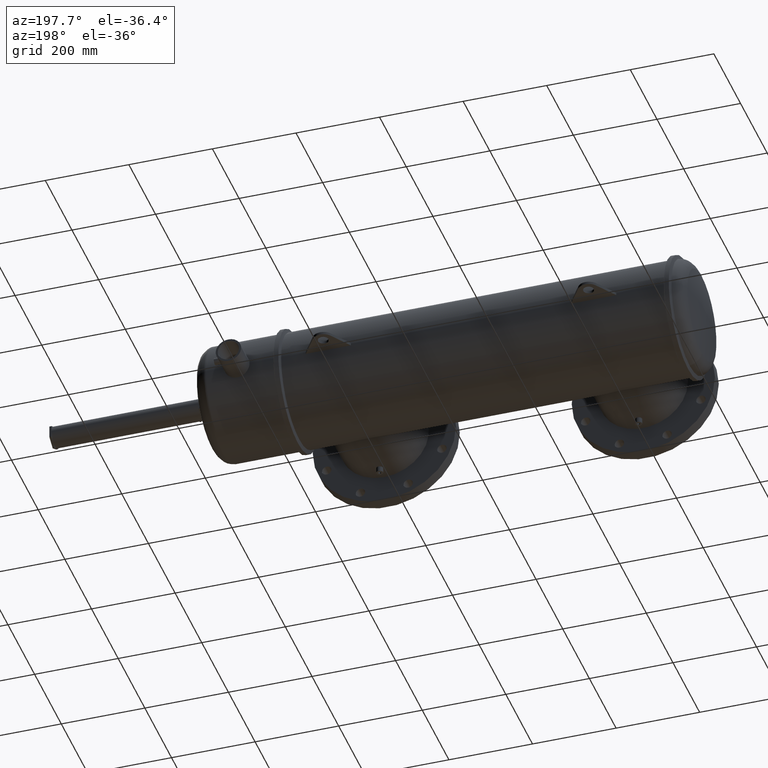
[diagram: clean part render]
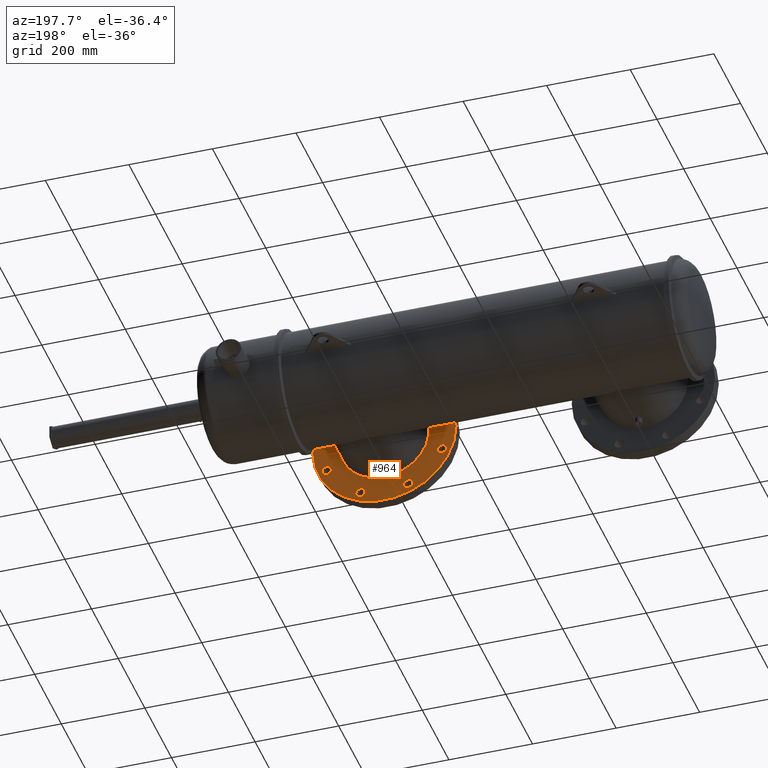
[diagram: same view with one face highlighted and labeled with its STEP entity id]
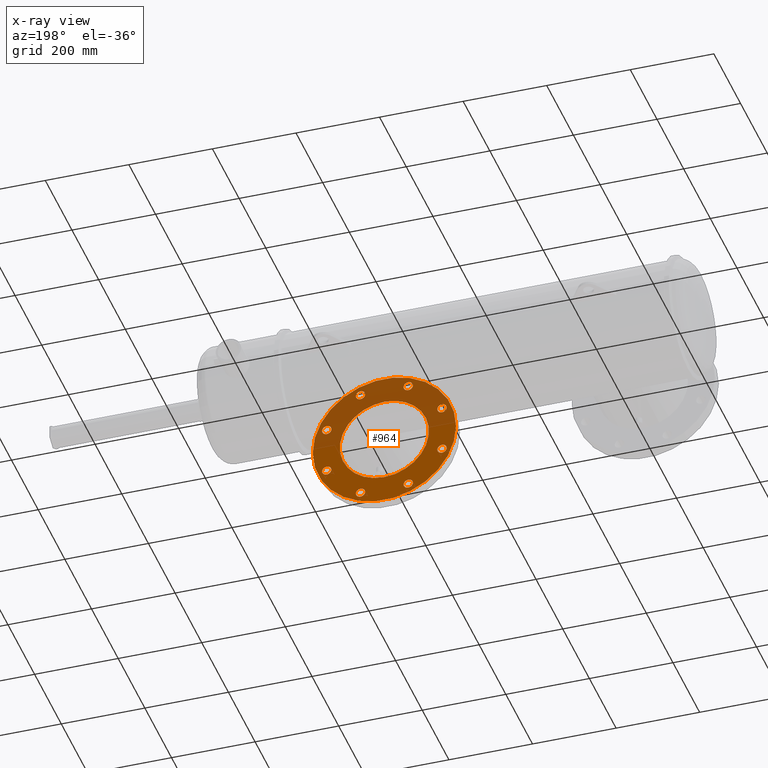
[diagram: x-ray of the same camera — body ghosted, the highlighted face saturated]
A machine part, auxiliary view. The second image highlights one B-rep face of the part: STEP entity #964.
The next image is the same camera in x-ray: the body ghosted, the highlighted face saturated — about 48% of this face is hidden behind the body in this view.
In plain terms, the highlighted planar face has unit normal (0, -1, 0).
Its self-contained STEP definition (entity closure, byte-faithful):
#21 = VERTEX_POINT ( 'NONE', #2754 ) ;
#47 = CARTESIAN_POINT ( 'NONE',  ( 38.75933425157163000, -9.259999999999998000, 2.248265165145017200 ) ) ;
#78 = EDGE_CURVE ( 'NONE', #6209, #1528, #3925, .T. ) ;
#108 = EDGE_LOOP ( 'NONE', ( #6793, #5012 ) ) ;
#123 = DIRECTION ( 'NONE',  ( 1.052735257674089800E-016, -1.000000000000000000, 0.0000000000000000000 ) ) ;
#218 = CARTESIAN_POINT ( 'NONE',  ( 40.08154199806774200, -9.259999999999996200, 0.0000000000000000000 ) ) ;
#259 = AXIS2_PLACEMENT_3D ( 'NONE', #4821, #5918, #3710 ) ;
#285 = AXIS2_PLACEMENT_3D ( 'NONE', #6005, #1566, #6552 ) ;
#288 = AXIS2_PLACEMENT_3D ( 'NONE', #4415, #4833, #541 ) ;
#452 = EDGE_LOOP ( 'NONE', ( #1020, #6146 ) ) ;
#535 = FACE_BOUND ( 'NONE', #3739, .T. ) ;
#541 = DIRECTION ( 'NONE',  ( 1.000000000000000000, 0.0000000000000000000, 0.0000000000000000000 ) ) ;
#579 = CARTESIAN_POINT ( 'NONE',  ( 27.46374974456403000, -9.259999999999999800, 2.248265165144706800 ) ) ;
#580 = AXIS2_PLACEMENT_3D ( 'NONE', #3376, #5167, #5304 ) ;
#618 = DIRECTION ( 'NONE',  ( 1.000000000000000000, 0.0000000000000000000, 0.0000000000000000000 ) ) ;
#631 = CARTESIAN_POINT ( 'NONE',  ( 26.58154199806774200, -9.259999999999999800, 8.266365894244638300E-016 ) ) ;
#770 = CARTESIAN_POINT ( 'NONE',  ( 31.52327683292287500, -9.259999999999999800, 5.427792253503696400 ) ) ;
#786 = CARTESIAN_POINT ( 'NONE',  ( 35.57980716321296200, -9.259999999999998000, -5.427792253503806600 ) ) ;
#822 = EDGE_CURVE ( 'NONE', #1528, #6209, #2773, .T. ) ;
#866 = DIRECTION ( 'NONE',  ( 1.052735257674089800E-016, -1.000000000000000000, 0.0000000000000000000 ) ) ;
#964 = ADVANCED_FACE ( 'NONE', ( #6015, #1307, #1130, #7057, #4524, #5580, #6890, #535, #1572, #3469 ), #2109, .F. ) ;
#965 = DIRECTION ( 'NONE',  ( 1.000000000000000000, 0.0000000000000000000, 0.0000000000000000000 ) ) ;
#969 = EDGE_CURVE ( 'NONE', #1010, #3857, #1908, .T. ) ;
#1010 = VERTEX_POINT ( 'NONE', #3949 ) ;
#1020 = ORIENTED_EDGE ( 'NONE', *, *, #1583, .T. ) ;
#1068 = EDGE_LOOP ( 'NONE', ( #6147, #6507 ) ) ;
#1069 = DIRECTION ( 'NONE',  ( 1.052735257674089800E-016, -1.000000000000000000, 0.0000000000000000000 ) ) ;
#1099 = ORIENTED_EDGE ( 'NONE', *, *, #78, .T. ) ;
#1130 = FACE_BOUND ( 'NONE', #452, .T. ) ;
#1153 = VERTEX_POINT ( 'NONE', #1221 ) ;
#1163 = CARTESIAN_POINT ( 'NONE',  ( 31.52327683292315200, -9.259999999999999800, -5.427792253503934500 ) ) ;
#1221 = CARTESIAN_POINT ( 'NONE',  ( 33.33154199806774200, -9.259999999999998000, -4.196850393700788800 ) ) ;
#1272 = AXIS2_PLACEMENT_3D ( 'NONE', #786, #1784, #3474 ) ;
#1307 = FACE_BOUND ( 'NONE', #108, .T. ) ;
#1375 = DIRECTION ( 'NONE',  ( 1.000000000000000000, 0.0000000000000000000, 0.0000000000000000000 ) ) ;
#1386 = CIRCLE ( 'NONE', #1596, 6.750000000000000000 ) ;
#1416 = CIRCLE ( 'NONE', #6471, 0.4400000000000029400 ) ;
#1447 = VERTEX_POINT ( 'NONE', #6643 ) ;
#1514 = CARTESIAN_POINT ( 'NONE',  ( 27.90374974456403500, -9.259999999999999800, 2.248265165144706800 ) ) ;
#1528 = VERTEX_POINT ( 'NONE', #5179 ) ;
#1566 = DIRECTION ( 'NONE',  ( 1.052735257674089800E-016, -1.000000000000000000, 0.0000000000000000000 ) ) ;
#1572 = FACE_BOUND ( 'NONE', #1068, .T. ) ;
#1583 = EDGE_CURVE ( 'NONE', #21, #4704, #5930, .T. ) ;
#1587 = DIRECTION ( 'NONE',  ( 1.000000000000000000, 0.0000000000000000000, 0.0000000000000000000 ) ) ;
#1596 = AXIS2_PLACEMENT_3D ( 'NONE', #6181, #2823, #5647 ) ;
#1675 = EDGE_CURVE ( 'NONE', #7084, #2661, #1900, .T. ) ;
#1742 = EDGE_CURVE ( 'NONE', #3857, #1010, #6274, .T. ) ;
#1784 = DIRECTION ( 'NONE',  ( 1.052735257674089800E-016, -1.000000000000000000, 0.0000000000000000000 ) ) ;
#1900 = CIRCLE ( 'NONE', #4026, 0.4399999999999985600 ) ;
#1908 = CIRCLE ( 'NONE', #3326, 0.4400000000000029400 ) ;
#2026 = VERTEX_POINT ( 'NONE', #1163 ) ;
#2096 = EDGE_CURVE ( 'NONE', #6629, #2653, #4603, .T. ) ;
#2109 = PLANE ( 'NONE',  #3470 ) ;
#2151 = AXIS2_PLACEMENT_3D ( 'NONE', #1514, #3754, #2588 ) ;
#2155 = DIRECTION ( 'NONE',  ( 1.000000000000000000, 0.0000000000000000000, 0.0000000000000000000 ) ) ;
#2169 = CARTESIAN_POINT ( 'NONE',  ( 33.33154199806774200, -9.259999999999998000, 0.0000000000000000000 ) ) ;
#2194 = AXIS2_PLACEMENT_3D ( 'NONE', #47, #6721, #618 ) ;
#2268 = CARTESIAN_POINT ( 'NONE',  ( 36.01980716321261200, -9.259999999999998000, 5.427792253503824300 ) ) ;
#2269 = CARTESIAN_POINT ( 'NONE',  ( 39.19933425157162800, -9.259999999999998000, 2.248265165145017200 ) ) ;
#2282 = DIRECTION ( 'NONE',  ( 1.052735257674089800E-016, -1.000000000000000000, 0.0000000000000000000 ) ) ;
#2383 = DIRECTION ( 'NONE',  ( 1.000000000000000000, 0.0000000000000000000, 0.0000000000000000000 ) ) ;
#2445 = DIRECTION ( 'NONE',  ( 1.052735257674089800E-016, -1.000000000000000000, 0.0000000000000000000 ) ) ;
#2492 = VERTEX_POINT ( 'NONE', #218 ) ;
#2511 = VERTEX_POINT ( 'NONE', #4609 ) ;
#2564 = CARTESIAN_POINT ( 'NONE',  ( 30.64327683292314600, -9.259999999999999800, -5.427792253503934500 ) ) ;
#2588 = DIRECTION ( 'NONE',  ( 1.000000000000000000, 0.0000000000000000000, 0.0000000000000000000 ) ) ;
#2608 = CARTESIAN_POINT ( 'NONE',  ( 36.01980716321296700, -9.259999999999998000, -5.427792253503806600 ) ) ;
#2624 = CARTESIAN_POINT ( 'NONE',  ( 38.31933425157163200, -9.259999999999998000, 2.248265165145017200 ) ) ;
#2643 = ORIENTED_EDGE ( 'NONE', *, *, #4832, .T. ) ;
#2653 = VERTEX_POINT ( 'NONE', #6402 ) ;
#2661 = VERTEX_POINT ( 'NONE', #2624 ) ;
#2688 = CIRCLE ( 'NONE', #1272, 0.4400000000000029400 ) ;
#2695 = CARTESIAN_POINT ( 'NONE',  ( 33.33154199806774200, -9.259999999999998000, 0.0000000000000000000 ) ) ;
#2696 = EDGE_LOOP ( 'NONE', ( #2825, #2643 ) ) ;
#2699 = AXIS2_PLACEMENT_3D ( 'NONE', #6501, #3143, #965 ) ;
#2730 = DIRECTION ( 'NONE',  ( 1.000000000000000000, 1.618872885134378200E-016, 0.0000000000000000000 ) ) ;
#2735 = EDGE_LOOP ( 'NONE', ( #4285, #3721 ) ) ;
#2751 = DIRECTION ( 'NONE',  ( 1.000000000000000000, 0.0000000000000000000, 0.0000000000000000000 ) ) ;
#2754 = CARTESIAN_POINT ( 'NONE',  ( 28.34374974456414600, -9.259999999999999800, -2.248265165145106900 ) ) ;
#2772 = EDGE_CURVE ( 'NONE', #2492, #4049, #1386, .T. ) ;
#2773 = CIRCLE ( 'NONE', #259, 0.4400000000000029400 ) ;
#2823 = DIRECTION ( 'NONE',  ( 1.052735257674089800E-016, -1.000000000000000000, 0.0000000000000000000 ) ) ;
#2825 = ORIENTED_EDGE ( 'NONE', *, *, #1675, .T. ) ;
#2966 = EDGE_LOOP ( 'NONE', ( #7135, #6857 ) ) ;
#3103 = CIRCLE ( 'NONE', #285, 0.4400000000000029400 ) ;
#3125 = CIRCLE ( 'NONE', #5111, 0.4400000000000029400 ) ;
#3138 = EDGE_CURVE ( 'NONE', #2653, #6629, #4337, .T. ) ;
#3143 = DIRECTION ( 'NONE',  ( 1.052735257674089800E-016, -1.000000000000000000, 0.0000000000000000000 ) ) ;
#3299 = EDGE_CURVE ( 'NONE', #2026, #5963, #1416, .T. ) ;
#3326 = AXIS2_PLACEMENT_3D ( 'NONE', #3905, #5516, #2155 ) ;
#3352 = AXIS2_PLACEMENT_3D ( 'NONE', #5463, #6072, #5445 ) ;
#3376 = CARTESIAN_POINT ( 'NONE',  ( 33.33154199806774200, -9.259999999999998000, 0.0000000000000000000 ) ) ;
#3413 = AXIS2_PLACEMENT_3D ( 'NONE', #3934, #4109, #7242 ) ;
#3469 = FACE_OUTER_BOUND ( 'NONE', #6334, .T. ) ;
#3470 = AXIS2_PLACEMENT_3D ( 'NONE', #2695, #7120, #6616 ) ;
#3474 = DIRECTION ( 'NONE',  ( 1.000000000000000000, 0.0000000000000000000, 0.0000000000000000000 ) ) ;
#3504 = AXIS2_PLACEMENT_3D ( 'NONE', #3994, #123, #2383 ) ;
#3535 = CARTESIAN_POINT ( 'NONE',  ( 38.31933425157177500, -9.259999999999998000, -2.248265165144798700 ) ) ;
#3617 = CARTESIAN_POINT ( 'NONE',  ( 27.46374974456414000, -9.259999999999999800, -2.248265165145106900 ) ) ;
#3620 = ORIENTED_EDGE ( 'NONE', *, *, #969, .T. ) ;
#3657 = CIRCLE ( 'NONE', #2194, 0.4399999999999985600 ) ;
#3710 = DIRECTION ( 'NONE',  ( 1.000000000000000000, 0.0000000000000000000, 0.0000000000000000000 ) ) ;
#3716 = EDGE_CURVE ( 'NONE', #2511, #1153, #4018, .T. ) ;
#3721 = ORIENTED_EDGE ( 'NONE', *, *, #6878, .T. ) ;
#3739 = EDGE_LOOP ( 'NONE', ( #1099, #5165 ) ) ;
#3754 = DIRECTION ( 'NONE',  ( 1.052735257674089800E-016, -1.000000000000000000, 0.0000000000000000000 ) ) ;
#3857 = VERTEX_POINT ( 'NONE', #770 ) ;
#3905 = CARTESIAN_POINT ( 'NONE',  ( 31.08327683292287300, -9.259999999999999800, 5.427792253503696400 ) ) ;
#3925 = CIRCLE ( 'NONE', #3413, 0.4400000000000029400 ) ;
#3934 = CARTESIAN_POINT ( 'NONE',  ( 35.57980716321260700, -9.259999999999998000, 5.427792253503824300 ) ) ;
#3949 = CARTESIAN_POINT ( 'NONE',  ( 30.64327683292286900, -9.259999999999999800, 5.427792253503696400 ) ) ;
#3989 = EDGE_CURVE ( 'NONE', #6242, #1447, #6022, .T. ) ;
#3994 = CARTESIAN_POINT ( 'NONE',  ( 38.75933425157177200, -9.259999999999998000, -2.248265165144798700 ) ) ;
#4018 = CIRCLE ( 'NONE', #5160, 4.196850393700788800 ) ;
#4026 = AXIS2_PLACEMENT_3D ( 'NONE', #4834, #866, #7001 ) ;
#4049 = VERTEX_POINT ( 'NONE', #631 ) ;
#4109 = DIRECTION ( 'NONE',  ( 1.052735257674089800E-016, -1.000000000000000000, 0.0000000000000000000 ) ) ;
#4193 = EDGE_CURVE ( 'NONE', #4771, #5768, #2688, .T. ) ;
#4242 = ORIENTED_EDGE ( 'NONE', *, *, #2772, .F. ) ;
#4285 = ORIENTED_EDGE ( 'NONE', *, *, #3299, .T. ) ;
#4337 = CIRCLE ( 'NONE', #2699, 0.4400000000000029400 ) ;
#4415 = CARTESIAN_POINT ( 'NONE',  ( 27.90374974456403500, -9.259999999999999800, 2.248265165144706800 ) ) ;
#4516 = CARTESIAN_POINT ( 'NONE',  ( 35.57980716321296200, -9.259999999999998000, -5.427792253503806600 ) ) ;
#4524 = FACE_BOUND ( 'NONE', #6862, .T. ) ;
#4547 = AXIS2_PLACEMENT_3D ( 'NONE', #2169, #1069, #2730 ) ;
#4603 = CIRCLE ( 'NONE', #3504, 0.4400000000000029400 ) ;
#4609 = CARTESIAN_POINT ( 'NONE',  ( 33.33154199806774200, -9.259999999999998000, 4.196850393700788800 ) ) ;
#4695 = CIRCLE ( 'NONE', #4547, 6.750000000000000000 ) ;
#4704 = VERTEX_POINT ( 'NONE', #3617 ) ;
#4771 = VERTEX_POINT ( 'NONE', #2608 ) ;
#4784 = ORIENTED_EDGE ( 'NONE', *, *, #6130, .F. ) ;
#4821 = CARTESIAN_POINT ( 'NONE',  ( 35.57980716321260700, -9.259999999999998000, 5.427792253503824300 ) ) ;
#4832 = EDGE_CURVE ( 'NONE', #2661, #7084, #3657, .T. ) ;
#4833 = DIRECTION ( 'NONE',  ( 1.052735257674089800E-016, -1.000000000000000000, 0.0000000000000000000 ) ) ;
#4834 = CARTESIAN_POINT ( 'NONE',  ( 38.75933425157163000, -9.259999999999998000, 2.248265165145017200 ) ) ;
#4859 = DIRECTION ( 'NONE',  ( 1.000000000000000000, 0.0000000000000000000, 0.0000000000000000000 ) ) ;
#4888 = EDGE_CURVE ( 'NONE', #5768, #4771, #3125, .T. ) ;
#4924 = DIRECTION ( 'NONE',  ( 1.052735257674089800E-016, -1.000000000000000000, 0.0000000000000000000 ) ) ;
#4996 = DIRECTION ( 'NONE',  ( 1.052735257674089800E-016, -1.000000000000000000, 0.0000000000000000000 ) ) ;
#5012 = ORIENTED_EDGE ( 'NONE', *, *, #3989, .T. ) ;
#5111 = AXIS2_PLACEMENT_3D ( 'NONE', #4516, #4996, #2751 ) ;
#5160 = AXIS2_PLACEMENT_3D ( 'NONE', #6814, #2282, #6765 ) ;
#5165 = ORIENTED_EDGE ( 'NONE', *, *, #822, .T. ) ;
#5167 = DIRECTION ( 'NONE',  ( 1.052735257674089800E-016, -1.000000000000000000, 0.0000000000000000000 ) ) ;
#5179 = CARTESIAN_POINT ( 'NONE',  ( 35.13980716321260900, -9.259999999999998000, 5.427792253503824300 ) ) ;
#5255 = CARTESIAN_POINT ( 'NONE',  ( 27.90374974456414100, -9.259999999999999800, -2.248265165145106900 ) ) ;
#5273 = CARTESIAN_POINT ( 'NONE',  ( 31.08327683292314700, -9.259999999999999800, -5.427792253503934500 ) ) ;
#5304 = DIRECTION ( 'NONE',  ( 1.000000000000000000, 0.0000000000000000000, 0.0000000000000000000 ) ) ;
#5372 = ORIENTED_EDGE ( 'NONE', *, *, #4888, .T. ) ;
#5445 = DIRECTION ( 'NONE',  ( 1.000000000000000000, 0.0000000000000000000, 0.0000000000000000000 ) ) ;
#5463 = CARTESIAN_POINT ( 'NONE',  ( 27.90374974456414100, -9.259999999999999800, -2.248265165145106900 ) ) ;
#5497 = EDGE_LOOP ( 'NONE', ( #7111, #3620 ) ) ;
#5516 = DIRECTION ( 'NONE',  ( 1.052735257674089800E-016, -1.000000000000000000, 0.0000000000000000000 ) ) ;
#5524 = AXIS2_PLACEMENT_3D ( 'NONE', #6003, #4924, #1587 ) ;
#5580 = FACE_BOUND ( 'NONE', #2966, .T. ) ;
#5585 = EDGE_CURVE ( 'NONE', #1153, #2511, #6544, .T. ) ;
#5641 = CIRCLE ( 'NONE', #3352, 0.4400000000000029400 ) ;
#5647 = DIRECTION ( 'NONE',  ( 1.000000000000000000, 1.618872885134378200E-016, 0.0000000000000000000 ) ) ;
#5768 = VERTEX_POINT ( 'NONE', #7211 ) ;
#5918 = DIRECTION ( 'NONE',  ( 1.052735257674089800E-016, -1.000000000000000000, 0.0000000000000000000 ) ) ;
#5930 = CIRCLE ( 'NONE', #6785, 0.4400000000000029400 ) ;
#5963 = VERTEX_POINT ( 'NONE', #2564 ) ;
#5965 = EDGE_CURVE ( 'NONE', #1447, #6242, #6359, .T. ) ;
#6003 = CARTESIAN_POINT ( 'NONE',  ( 31.08327683292287300, -9.259999999999999800, 5.427792253503696400 ) ) ;
#6005 = CARTESIAN_POINT ( 'NONE',  ( 31.08327683292314700, -9.259999999999999800, -5.427792253503934500 ) ) ;
#6015 = FACE_BOUND ( 'NONE', #5497, .T. ) ;
#6022 = CIRCLE ( 'NONE', #288, 0.4400000000000029400 ) ;
#6033 = ORIENTED_EDGE ( 'NONE', *, *, #4193, .T. ) ;
#6072 = DIRECTION ( 'NONE',  ( 1.052735257674089800E-016, -1.000000000000000000, 0.0000000000000000000 ) ) ;
#6130 = EDGE_CURVE ( 'NONE', #4049, #2492, #4695, .T. ) ;
#6146 = ORIENTED_EDGE ( 'NONE', *, *, #6747, .T. ) ;
#6147 = ORIENTED_EDGE ( 'NONE', *, *, #3716, .T. ) ;
#6181 = CARTESIAN_POINT ( 'NONE',  ( 33.33154199806774200, -9.259999999999998000, 0.0000000000000000000 ) ) ;
#6209 = VERTEX_POINT ( 'NONE', #2268 ) ;
#6242 = VERTEX_POINT ( 'NONE', #579 ) ;
#6274 = CIRCLE ( 'NONE', #5524, 0.4400000000000029400 ) ;
#6334 = EDGE_LOOP ( 'NONE', ( #4242, #4784 ) ) ;
#6359 = CIRCLE ( 'NONE', #2151, 0.4400000000000029400 ) ;
#6402 = CARTESIAN_POINT ( 'NONE',  ( 39.19933425157177700, -9.259999999999998000, -2.248265165144798700 ) ) ;
#6471 = AXIS2_PLACEMENT_3D ( 'NONE', #5273, #2445, #4859 ) ;
#6501 = CARTESIAN_POINT ( 'NONE',  ( 38.75933425157177200, -9.259999999999998000, -2.248265165144798700 ) ) ;
#6507 = ORIENTED_EDGE ( 'NONE', *, *, #5585, .T. ) ;
#6544 = CIRCLE ( 'NONE', #580, 4.196850393700788800 ) ;
#6552 = DIRECTION ( 'NONE',  ( 1.000000000000000000, 0.0000000000000000000, 0.0000000000000000000 ) ) ;
#6616 = DIRECTION ( 'NONE',  ( 1.000000000000000000, 1.052735257674089700E-016, 0.0000000000000000000 ) ) ;
#6629 = VERTEX_POINT ( 'NONE', #3535 ) ;
#6643 = CARTESIAN_POINT ( 'NONE',  ( 28.34374974456403600, -9.259999999999999800, 2.248265165144706800 ) ) ;
#6721 = DIRECTION ( 'NONE',  ( 1.052735257674089800E-016, -1.000000000000000000, 0.0000000000000000000 ) ) ;
#6747 = EDGE_CURVE ( 'NONE', #4704, #21, #5641, .T. ) ;
#6765 = DIRECTION ( 'NONE',  ( 1.000000000000000000, 0.0000000000000000000, 0.0000000000000000000 ) ) ;
#6785 = AXIS2_PLACEMENT_3D ( 'NONE', #5255, #6926, #1375 ) ;
#6793 = ORIENTED_EDGE ( 'NONE', *, *, #5965, .T. ) ;
#6814 = CARTESIAN_POINT ( 'NONE',  ( 33.33154199806774200, -9.259999999999998000, 0.0000000000000000000 ) ) ;
#6857 = ORIENTED_EDGE ( 'NONE', *, *, #2096, .T. ) ;
#6862 = EDGE_LOOP ( 'NONE', ( #6033, #5372 ) ) ;
#6878 = EDGE_CURVE ( 'NONE', #5963, #2026, #3103, .T. ) ;
#6890 = FACE_BOUND ( 'NONE', #2696, .T. ) ;
#6926 = DIRECTION ( 'NONE',  ( 1.052735257674089800E-016, -1.000000000000000000, 0.0000000000000000000 ) ) ;
#7001 = DIRECTION ( 'NONE',  ( 1.000000000000000000, 0.0000000000000000000, 0.0000000000000000000 ) ) ;
#7057 = FACE_BOUND ( 'NONE', #2735, .T. ) ;
#7084 = VERTEX_POINT ( 'NONE', #2269 ) ;
#7111 = ORIENTED_EDGE ( 'NONE', *, *, #1742, .T. ) ;
#7120 = DIRECTION ( 'NONE',  ( 1.052735257674089700E-016, -1.000000000000000000, 0.0000000000000000000 ) ) ;
#7135 = ORIENTED_EDGE ( 'NONE', *, *, #3138, .T. ) ;
#7211 = CARTESIAN_POINT ( 'NONE',  ( 35.13980716321295700, -9.259999999999998000, -5.427792253503806600 ) ) ;
#7242 = DIRECTION ( 'NONE',  ( 1.000000000000000000, 0.0000000000000000000, 0.0000000000000000000 ) ) ;